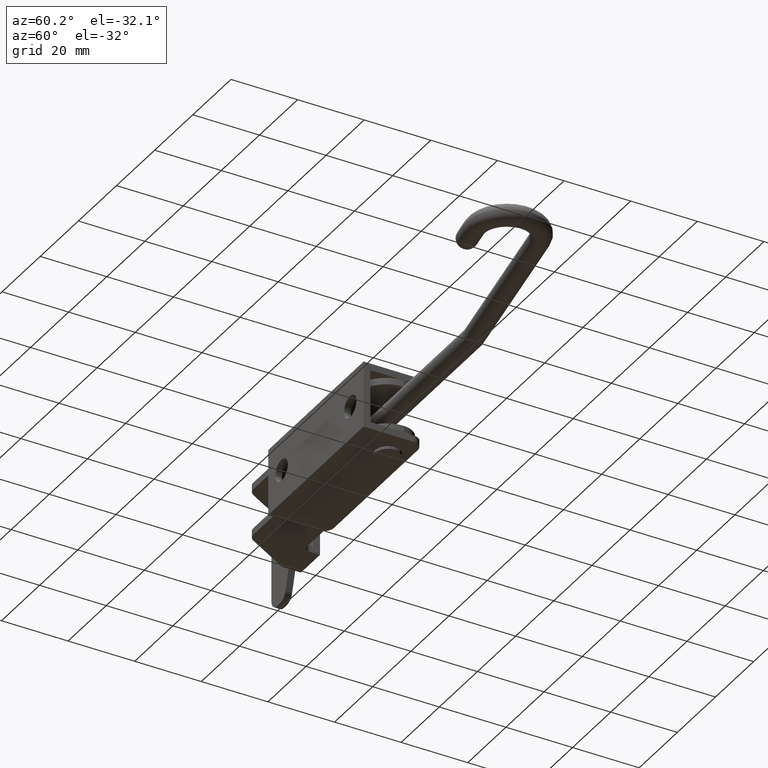
[diagram: clean part render]
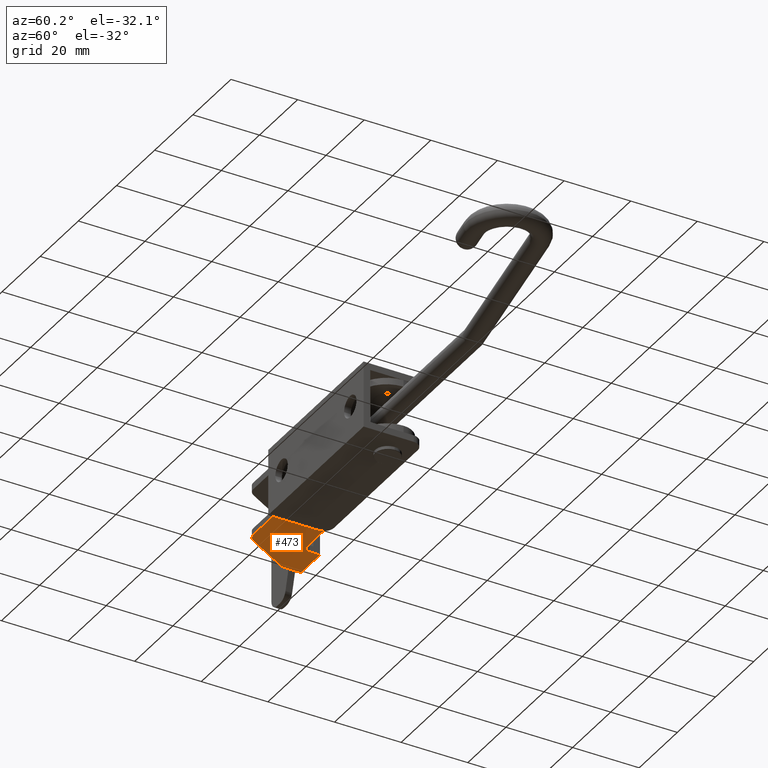
[diagram: same view with one face highlighted and labeled with its STEP entity id]
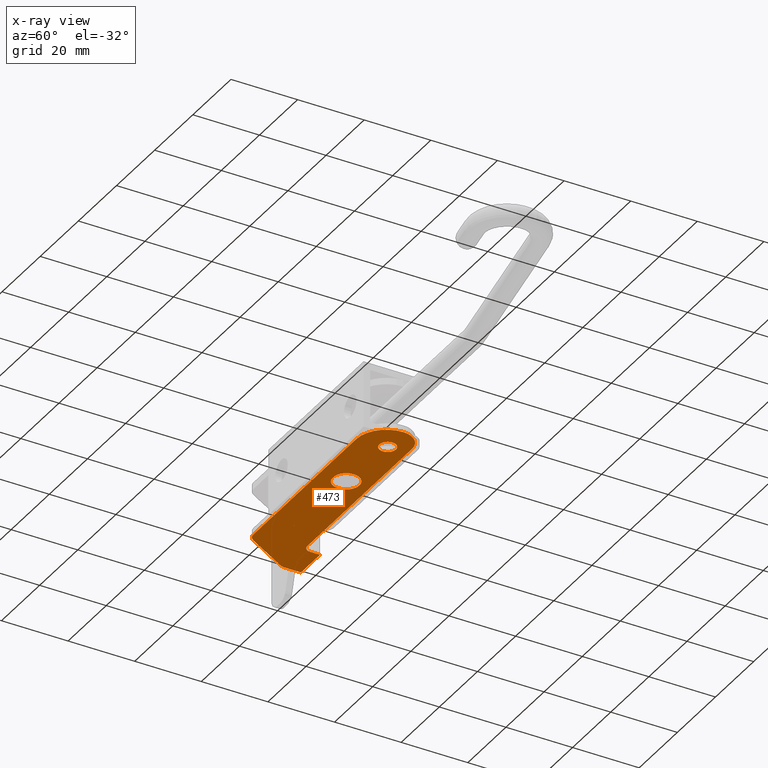
[diagram: x-ray of the same camera — body ghosted, the highlighted face saturated]
A machine part, auxiliary view. The second image highlights one B-rep face of the part: STEP entity #473.
The next image is the same camera in x-ray: the body ghosted, the highlighted face saturated — about 0% of this face is hidden behind the body in this view.
In plain terms, the highlighted planar face has unit normal (0, 0, -1).
Its self-contained STEP definition (entity closure, byte-faithful):
#23 = CARTESIAN_POINT ( 'NONE',  ( -8.999999999999980500, 12.00000000000017600, -8.000000000000008900 ) ) ;
#47 = CIRCLE ( 'NONE', #1977, 2.999999999999981800 ) ;
#161 = DIRECTION ( 'NONE',  ( 4.993013296730410200E-015, 1.045111256629086700E-018, -1.000000000000000000 ) ) ;
#170 = DIRECTION ( 'NONE',  ( 4.993013296730410200E-015, 1.045111256629086700E-018, -1.000000000000000000 ) ) ;
#174 = CARTESIAN_POINT ( 'NONE',  ( -48.67761359179638000, 18.00000000000001800, -8.000000000000207800 ) ) ;
#208 = VECTOR ( 'NONE', #254, 1000.000000000000000 ) ;
#239 = DIRECTION ( 'NONE',  ( -1.000000000000000000, 0.0000000000000000000, -4.857225732735059100E-015 ) ) ;
#245 = DIRECTION ( 'NONE',  ( -4.993013296730410200E-015, -1.045111256629086700E-018, 1.000000000000000000 ) ) ;
#246 = CIRCLE ( 'NONE', #3412, 9.000000000000003600 ) ;
#251 = AXIS2_PLACEMENT_3D ( 'NONE', #4037, #1978, #4407 ) ;
#254 = DIRECTION ( 'NONE',  ( -1.221245327087672000E-015, -1.000000000000000000, -1.045111256634867400E-018 ) ) ;
#257 = CARTESIAN_POINT ( 'NONE',  ( -24.34999999999977400, 10.99999999999999500, -8.000000000000087000 ) ) ;
#289 = CARTESIAN_POINT ( 'NONE',  ( -60.99999999999990800, 20.00000000000003600, -8.000000000000268200 ) ) ;
#310 = VECTOR ( 'NONE', #1661, 1000.000000000000000 ) ;
#356 = VECTOR ( 'NONE', #3162, 1000.000000000000000 ) ;
#401 = DIRECTION ( 'NONE',  ( 1.000000000000000000, 9.588289758126483900E-017, 4.993013296730406300E-015 ) ) ;
#450 = CARTESIAN_POINT ( 'NONE',  ( -72.99999999999992900, 18.12435565298238800, -8.000000000000330400 ) ) ;
#467 = EDGE_CURVE ( 'NONE', #3692, #1868, #2929, .T. ) ;
#473 = ADVANCED_FACE ( 'NONE', ( #2828, #2873, #2778 ), #3227, .T. ) ;
#548 = CARTESIAN_POINT ( 'NONE',  ( -5.999999999999977800, 12.00000000000002000, -7.999999999999992900 ) ) ;
#556 = EDGE_CURVE ( 'NONE', #4122, #3688, #1750, .T. ) ;
#661 = CIRCLE ( 'NONE', #2647, 2.500000000000000400 ) ;
#753 = EDGE_LOOP ( 'NONE', ( #870, #1209 ) ) ;
#756 = VERTEX_POINT ( 'NONE', #2654 ) ;
#804 = VERTEX_POINT ( 'NONE', #450 ) ;
#823 = CARTESIAN_POINT ( 'NONE',  ( -65.59807621135320200, 4.500000000000246900, -8.000000000000310900 ) ) ;
#847 = CIRCLE ( 'NONE', #1998, 3.000000000000002700 ) ;
#870 = ORIENTED_EDGE ( 'NONE', *, *, #3962, .F. ) ;
#924 = DIRECTION ( 'NONE',  ( 1.000000000000000000, -1.156482317317870000E-015, 4.915049848600947400E-015 ) ) ;
#970 = CARTESIAN_POINT ( 'NONE',  ( -28.34999999999977800, 10.99999999999999500, -8.000000000000108400 ) ) ;
#1124 = EDGE_CURVE ( 'NONE', #1818, #4074, #246, .T. ) ;
#1165 = AXIS2_PLACEMENT_3D ( 'NONE', #970, #3355, #1334 ) ;
#1209 = ORIENTED_EDGE ( 'NONE', *, *, #2531, .F. ) ;
#1223 = DIRECTION ( 'NONE',  ( -0.5000000000000012200, 0.8660254037844380400, -2.495601555467188200E-015 ) ) ;
#1280 = EDGE_CURVE ( 'NONE', #4036, #4122, #3339, .T. ) ;
#1305 = VERTEX_POINT ( 'NONE', #3300 ) ;
#1334 = DIRECTION ( 'NONE',  ( -1.000000000000000000, 0.0000000000000000000, -5.204170427930416600E-015 ) ) ;
#1361 = CARTESIAN_POINT ( 'NONE',  ( -68.51267013768550400, 9.548224763839430200, -8.000000000000305500 ) ) ;
#1367 = LINE ( 'NONE', #2659, #310 ) ;
#1389 = CARTESIAN_POINT ( 'NONE',  ( -8.999999999999994700, 3.000000000000172800, -8.000000000000353500 ) ) ;
#1416 = ORIENTED_EDGE ( 'NONE', *, *, #2552, .T. ) ;
#1530 = ORIENTED_EDGE ( 'NONE', *, *, #2355, .T. ) ;
#1556 = DIRECTION ( 'NONE',  ( 4.993013296730410200E-015, 1.045111256629086700E-018, -1.000000000000000000 ) ) ;
#1578 = VECTOR ( 'NONE', #401, 1000.000000000000000 ) ;
#1601 = DIRECTION ( 'NONE',  ( 4.993013296730410200E-015, 1.045111256629086700E-018, -1.000000000000000000 ) ) ;
#1624 = CARTESIAN_POINT ( 'NONE',  ( -10.84999999999979700, 11.99999999999999800, -8.000000000000019500 ) ) ;
#1633 = CARTESIAN_POINT ( 'NONE',  ( -62.99999999999991500, 23.00000000000001400, -8.000000000000325100 ) ) ;
#1661 = DIRECTION ( 'NONE',  ( -1.000000000000000000, 1.165734175856414200E-015, 1.483287680249672200E-015 ) ) ;
#1705 = ORIENTED_EDGE ( 'NONE', *, *, #4295, .T. ) ;
#1750 = LINE ( 'NONE', #174, #1578 ) ;
#1818 = VERTEX_POINT ( 'NONE', #3078 ) ;
#1868 = VERTEX_POINT ( 'NONE', #3450 ) ;
#1947 = ORIENTED_EDGE ( 'NONE', *, *, #3617, .T. ) ;
#1977 = AXIS2_PLACEMENT_3D ( 'NONE', #3579, #1556, #3955 ) ;
#1978 = DIRECTION ( 'NONE',  ( 4.993013296730410200E-015, 1.045111256629086700E-018, -1.000000000000000000 ) ) ;
#1998 = AXIS2_PLACEMENT_3D ( 'NONE', #2261, #170, #2579 ) ;
#2109 = ORIENTED_EDGE ( 'NONE', *, *, #3076, .F. ) ;
#2189 = DIRECTION ( 'NONE',  ( -1.000000000000000000, 1.165734175856414200E-015, -4.993013296730406300E-015 ) ) ;
#2198 = CARTESIAN_POINT ( 'NONE',  ( -5.999999999999963600, 18.00000000000002100, -7.999999999999960000 ) ) ;
#2241 = CARTESIAN_POINT ( 'NONE',  ( -48.67761359179638000, 22.99999999999999600, -8.000000000000207800 ) ) ;
#2258 = CIRCLE ( 'NONE', #3842, 2.500000000000000400 ) ;
#2261 = CARTESIAN_POINT ( 'NONE',  ( -69.99999999999992900, 18.12435565298238400, -8.000000000000314400 ) ) ;
#2287 = ORIENTED_EDGE ( 'NONE', *, *, #2637, .T. ) ;
#2325 = AXIS2_PLACEMENT_3D ( 'NONE', #3306, #3204, #3160 ) ;
#2336 = LINE ( 'NONE', #2806, #356 ) ;
#2338 = EDGE_LOOP ( 'NONE', ( #3224, #3642 ) ) ;
#2341 = DIRECTION ( 'NONE',  ( 4.993013296730410200E-015, 1.045111256629086700E-018, -1.000000000000000000 ) ) ;
#2344 = ORIENTED_EDGE ( 'NONE', *, *, #1280, .T. ) ;
#2355 = EDGE_CURVE ( 'NONE', #756, #3692, #47, .T. ) ;
#2470 = EDGE_CURVE ( 'NONE', #2528, #2561, #661, .T. ) ;
#2528 = VERTEX_POINT ( 'NONE', #1624 ) ;
#2531 = EDGE_CURVE ( 'NONE', #4516, #1305, #4117, .T. ) ;
#2552 = EDGE_CURVE ( 'NONE', #4074, #756, #1367, .T. ) ;
#2561 = VERTEX_POINT ( 'NONE', #3710 ) ;
#2579 = DIRECTION ( 'NONE',  ( 1.000000000000000000, -1.156482317317870300E-015, 5.204170427930416600E-015 ) ) ;
#2637 = EDGE_CURVE ( 'NONE', #4500, #4036, #3883, .T. ) ;
#2647 = AXIS2_PLACEMENT_3D ( 'NONE', #3628, #1601, #4001 ) ;
#2654 = CARTESIAN_POINT ( 'NONE',  ( -62.99999999999992900, 3.000000000000012900, -8.000000000000252200 ) ) ;
#2659 = CARTESIAN_POINT ( 'NONE',  ( 2.220446049250313100E-013, 2.999999999999936900, -8.000000000000344600 ) ) ;
#2742 = ORIENTED_EDGE ( 'NONE', *, *, #556, .T. ) ;
#2778 = FACE_BOUND ( 'NONE', #2338, .T. ) ;
#2806 = CARTESIAN_POINT ( 'NONE',  ( -72.99999999999991500, 21.00000000000002500, -8.000000000000334000 ) ) ;
#2817 = VECTOR ( 'NONE', #1223, 999.9999999999998900 ) ;
#2828 = FACE_BOUND ( 'NONE', #753, .T. ) ;
#2835 = ORIENTED_EDGE ( 'NONE', *, *, #3174, .T. ) ;
#2873 = FACE_OUTER_BOUND ( 'NONE', #4296, .T. ) ;
#2929 = LINE ( 'NONE', #1361, #2817 ) ;
#2946 = DIRECTION ( 'NONE',  ( 4.993013296730410200E-015, 1.045111256629086700E-018, -1.000000000000000000 ) ) ;
#2992 = CIRCLE ( 'NONE', #3159, 6.000000000000007100 ) ;
#3010 = CARTESIAN_POINT ( 'NONE',  ( -62.99999999999991500, 21.00000000000001100, -8.000000000000278900 ) ) ;
#3076 = EDGE_CURVE ( 'NONE', #4500, #4062, #4287, .T. ) ;
#3078 = CARTESIAN_POINT ( 'NONE',  ( 2.775557561562891400E-014, 12.00000000000016500, -8.000000000000344600 ) ) ;
#3108 = DIRECTION ( 'NONE',  ( 1.000000000000000000, -1.156482317317870900E-015, 5.011423375044107500E-015 ) ) ;
#3135 = DIRECTION ( 'NONE',  ( 1.000000000000000000, -1.734723475976799400E-015, 5.204170427930398400E-015 ) ) ;
#3143 = ORIENTED_EDGE ( 'NONE', *, *, #1124, .T. ) ;
#3159 = AXIS2_PLACEMENT_3D ( 'NONE', #548, #2946, #924 ) ;
#3160 = DIRECTION ( 'NONE',  ( 1.000000000000000000, -1.165734175856414200E-015, 4.993013296730405500E-015 ) ) ;
#3162 = DIRECTION ( 'NONE',  ( 1.221245327087672000E-015, 1.000000000000000000, 1.045111256634867400E-018 ) ) ;
#3174 = EDGE_CURVE ( 'NONE', #3688, #1818, #2992, .T. ) ;
#3204 = DIRECTION ( 'NONE',  ( 4.993013296730405500E-015, 1.045111256629086700E-018, -1.000000000000000000 ) ) ;
#3224 = ORIENTED_EDGE ( 'NONE', *, *, #4472, .F. ) ;
#3227 = PLANE ( 'NONE',  #2325 ) ;
#3300 = CARTESIAN_POINT ( 'NONE',  ( -32.34999999999978100, 10.99999999999999500, -8.000000000000127900 ) ) ;
#3306 = CARTESIAN_POINT ( 'NONE',  ( -48.67761359179638000, 20.99999999999999300, -8.000000000000207800 ) ) ;
#3339 = CIRCLE ( 'NONE', #4302, 2.000000000000008900 ) ;
#3355 = DIRECTION ( 'NONE',  ( 4.993013296730410200E-015, 1.045111256629086700E-018, -1.000000000000000000 ) ) ;
#3389 = CARTESIAN_POINT ( 'NONE',  ( -62.99999999999991500, 20.00000000000003900, -8.000000000000257600 ) ) ;
#3412 = AXIS2_PLACEMENT_3D ( 'NONE', #23, #161, #3108 ) ;
#3450 = CARTESIAN_POINT ( 'NONE',  ( -72.59807621135323100, 16.62435565298238800, -8.000000000000294900 ) ) ;
#3579 = CARTESIAN_POINT ( 'NONE',  ( -62.99999999999992900, 6.000000000000247800, -8.000000000000278900 ) ) ;
#3617 = EDGE_CURVE ( 'NONE', #804, #4062, #2336, .T. ) ;
#3628 = CARTESIAN_POINT ( 'NONE',  ( -8.349999999999797100, 11.99999999999999800, -8.000000000000007100 ) ) ;
#3642 = ORIENTED_EDGE ( 'NONE', *, *, #2470, .F. ) ;
#3688 = VERTEX_POINT ( 'NONE', #2198 ) ;
#3692 = VERTEX_POINT ( 'NONE', #823 ) ;
#3710 = CARTESIAN_POINT ( 'NONE',  ( -5.849999999999796300, 11.99999999999999800, -7.999999999999994700 ) ) ;
#3773 = CARTESIAN_POINT ( 'NONE',  ( -72.99999999999991500, 23.00000000000002500, -8.000000000000334000 ) ) ;
#3842 = AXIS2_PLACEMENT_3D ( 'NONE', #4410, #2341, #239 ) ;
#3883 = LINE ( 'NONE', #3010, #208 ) ;
#3955 = DIRECTION ( 'NONE',  ( 1.000000000000000000, -1.156482317317878400E-015, 5.204170427930452800E-015 ) ) ;
#3962 = EDGE_CURVE ( 'NONE', #1305, #4516, #4153, .T. ) ;
#4001 = DIRECTION ( 'NONE',  ( -1.000000000000000000, 0.0000000000000000000, -4.857225732735059100E-015 ) ) ;
#4036 = VERTEX_POINT ( 'NONE', #3389 ) ;
#4037 = CARTESIAN_POINT ( 'NONE',  ( -28.34999999999977800, 10.99999999999999500, -8.000000000000108400 ) ) ;
#4062 = VERTEX_POINT ( 'NONE', #3773 ) ;
#4074 = VERTEX_POINT ( 'NONE', #1389 ) ;
#4117 = CIRCLE ( 'NONE', #251, 4.000000000000003600 ) ;
#4122 = VERTEX_POINT ( 'NONE', #4155 ) ;
#4153 = CIRCLE ( 'NONE', #1165, 4.000000000000003600 ) ;
#4155 = CARTESIAN_POINT ( 'NONE',  ( -60.99999999999991500, 18.00000000000002500, -8.000000000000117200 ) ) ;
#4173 = VECTOR ( 'NONE', #2189, 1000.000000000000000 ) ;
#4287 = LINE ( 'NONE', #2241, #4173 ) ;
#4295 = EDGE_CURVE ( 'NONE', #1868, #804, #847, .T. ) ;
#4296 = EDGE_LOOP ( 'NONE', ( #1416, #1530, #4382, #1705, #1947, #2109, #2287, #2344, #2742, #2835, #3143 ) ) ;
#4302 = AXIS2_PLACEMENT_3D ( 'NONE', #289, #245, #3135 ) ;
#4382 = ORIENTED_EDGE ( 'NONE', *, *, #467, .T. ) ;
#4407 = DIRECTION ( 'NONE',  ( -1.000000000000000000, 0.0000000000000000000, -5.204170427930416600E-015 ) ) ;
#4410 = CARTESIAN_POINT ( 'NONE',  ( -8.349999999999797100, 11.99999999999999800, -8.000000000000007100 ) ) ;
#4472 = EDGE_CURVE ( 'NONE', #2561, #2528, #2258, .T. ) ;
#4500 = VERTEX_POINT ( 'NONE', #1633 ) ;
#4516 = VERTEX_POINT ( 'NONE', #257 ) ;